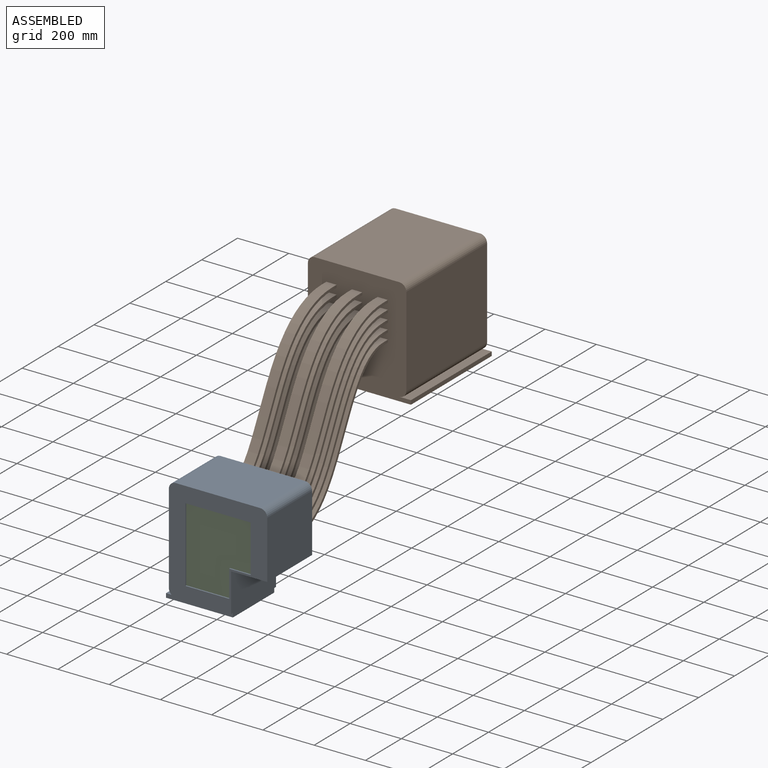
[diagram: assembled view]
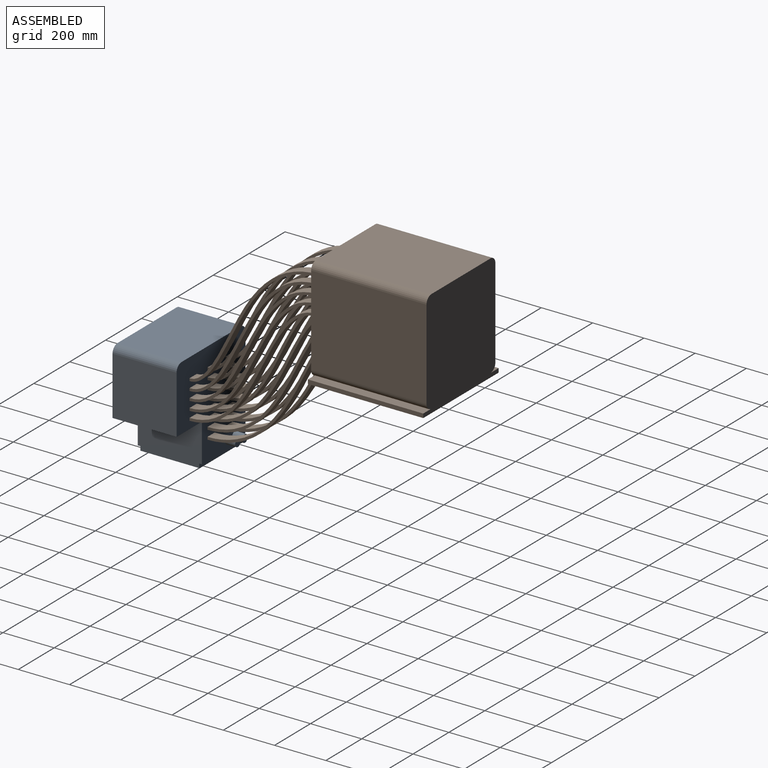
[diagram: assembled view, second angle]
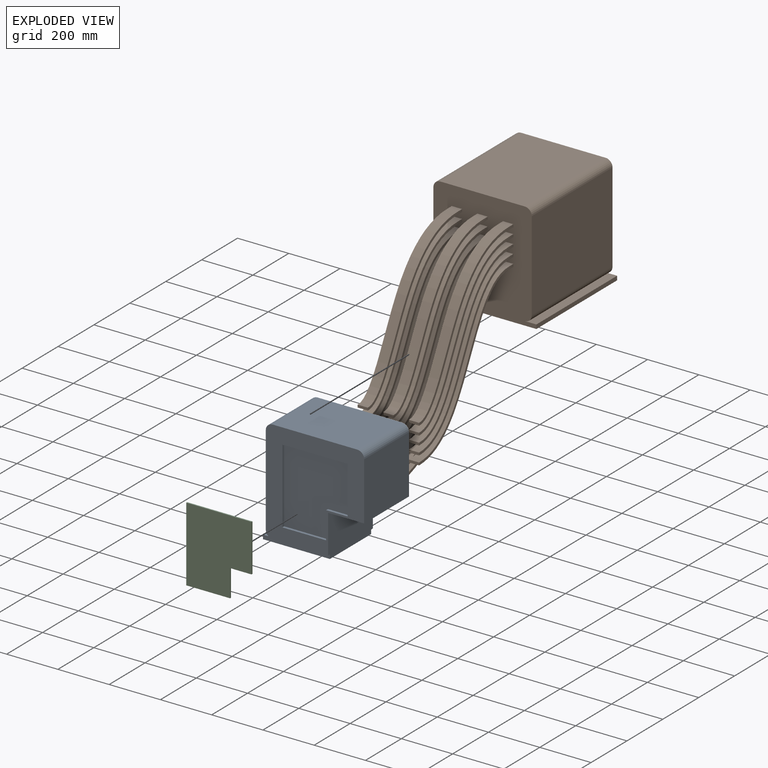
[diagram: exploded view]
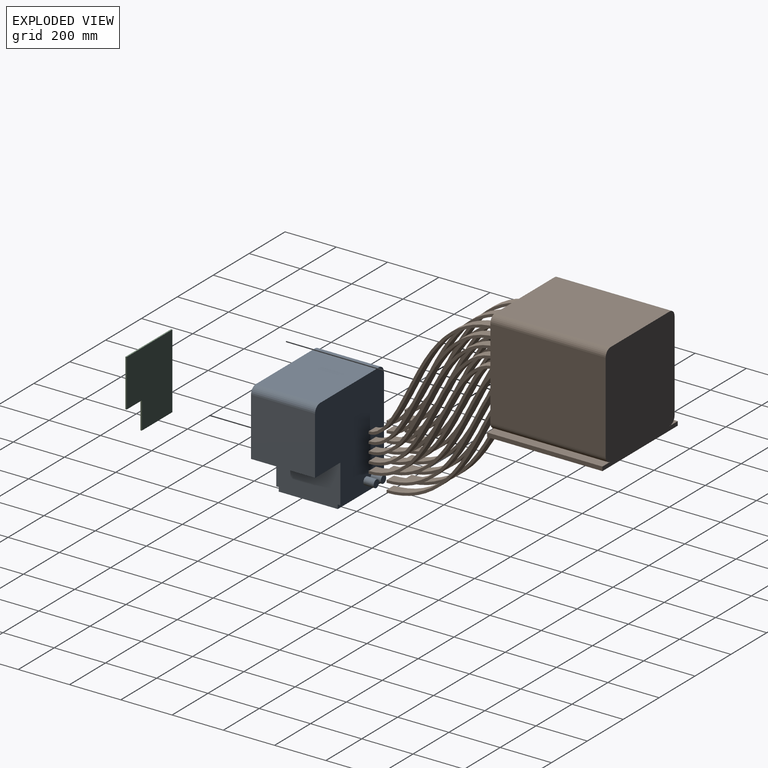
[diagram: exploded view, second angle]
ASSEMBLY  parts=3 mates=2
PART A: 28 faces, bbox 402x290x420 mm
  f0: plane 230x45mm, normal (0,0,1), area 10350mm2, adj f1,f12,f21,f23
  f1: plane 230x16mm, normal (-1,0,0), area 3680mm2, adj f0,f2,f21,f23
  f2: plane 261.09x230mm, normal (0,0,-1), area 60050.7mm2, adj f1,f5,f21,f23
  f3: plane 404x384mm, normal (0,1,0), area 132038.9mm2, adj f5,f6,f7,f8,f9,f10,f11,f12
  f4: plane 404x384mm, normal (0,-1,0), area 68111.5mm2, adj f5,f6,f7,f8,f9,f10,f11,f12
  f5: plane 250x166.55mm, normal (1,0,0), area 41317.5mm2, adj f2,f3,f4,f6,f20,f21,f22,f23
  f6: plane 250x140.91mm, normal (0,0,-1), area 35227.5mm2, adj f3,f4,f5,f7
  f7: plane 250x226.45mm, normal (1,0,0), area 56612.5mm2, adj f3,f4,f6,f8
  f8: cylinder r=27mm len=250mm, axis (0,-1,0), area 10602.9mm2, adj f3,f4,f7,f9
  f9: plane 330x250mm, normal (0,0,1), area 82500mm2, adj f3,f4,f8,f10
  f10: cylinder r=27mm len=250mm, axis (0,-1,0), area 10602.9mm2, adj f3,f4,f9,f11
  f11: plane 350x250mm, normal (-1,0,0), area 87500mm2, adj f3,f4,f10,f12
  f12: cylinder r=27mm len=250mm, axis (0,-1,0), area 10602.9mm2, adj f0,f3,f4,f11,f20,f22
  f13: plane 83.8x10mm, normal (0,0,1), area 838mm2, adj f4,f14,f18,f19
  f14: plane 184.99x10mm, normal (-1,0,0), area 1849.9mm2, adj f4,f13,f15,f19
  f15: plane 254.78x10mm, normal (0,0,-1), area 2547.8mm2, adj f4,f14,f16,f19
  f16: plane 291.49x10mm, normal (1,0,0), area 2914.9mm2, adj f4,f15,f17,f19
  f17: plane 170.98x10mm, normal (0,0,1), area 1709.8mm2, adj f4,f16,f18,f19
  f18: plane 106.5x10mm, normal (-1,0,0), area 1065mm2, adj f4,f13,f17,f19
  f19: plane 291.49x254.78mm, normal (0,-1,0), area 65341.1mm2, adj f13,f14,f15,f16,f17,f18
  f20: plane 216.09x10mm, normal (0,0,-1), area 2160.9mm2, adj f4,f5,f12,f21
  f21: plane 261.09x16mm, normal (0,-1,0), area 4177.4mm2, adj f0,f1,f2,f5,f20
  f22: plane 216.09x10mm, normal (0,0,-1), area 2160.9mm2, adj f3,f5,f12,f23
  f23: plane 261.09x16mm, normal (0,1,0), area 4177.4mm2, adj f0,f1,f2,f5,f22
  f24: cylinder r=15mm len=40mm, axis (0,-1,0), area 3769.9mm2, adj f3,f25
  f25: plane 30x30mm, normal (0,1,0), area 706.9mm2, adj f24
  f26: cylinder r=15mm len=40mm, axis (0,-1,0), area 3769.9mm2, adj f3,f27
  f27: plane 30x30mm, normal (0,1,0), area 706.9mm2, adj f26
PART B: 161 faces, bbox 423x978x832.5 mm
  f0: plane 420x420mm, normal (0,-1,0), area 152830.2mm2, adj f1,f2,f3,f4,f5,f6,f7,f8
  f1: cylinder r=27mm len=450mm, axis (0,1,0), area 19085.2mm2, adj f0,f2,f12,f13
  f2: plane 450x350mm, normal (1,0,0), area 157500mm2, adj f0,f1,f3,f13
  f3: cylinder r=27mm len=450mm, axis (0,1,0), area 19085.2mm2, adj f0,f2,f4,f13
  f4: plane 450x330mm, normal (0,0,1), area 148500mm2, adj f0,f3,f5,f13
  f5: cylinder r=27mm len=450mm, axis (0,1,0), area 19085.2mm2, adj f0,f4,f6,f13
  f6: plane 450x350mm, normal (-1,0,0), area 157500mm2, adj f0,f5,f7,f13
  f7: cylinder r=27mm len=450mm, axis (0,1,0), area 19085.2mm2, adj f0,f6,f8,f13
  f8: plane 450x45mm, normal (0,0,1), area 20250mm2, adj f0,f7,f9,f13
  f9: plane 450x16mm, normal (-1,0,0), area 7200mm2, adj f0,f8,f10,f13
  f10: plane 450x420mm, normal (0,0,-1), area 189000mm2, adj f0,f9,f11,f13
  f11: plane 450x16mm, normal (1,0,0), area 7200mm2, adj f0,f10,f12,f13
  f12: plane 450x45mm, normal (0,0,1), area 20250mm2, adj f0,f1,f11,f13
  f13: plane 420x420mm, normal (0,1,0), area 161230.2mm2, adj f1,f2,f3,f4,f5,f6,f7,f8
  f14: plane 40x25mm, normal (0,0,-1), area 1000mm2, adj f0,f15,f17,f100
  f15: plane 527.37x512.37mm, normal (1,0,0), area 7772.6mm2, adj f0,f14,f16,f98,f99,f100
  f16: plane 40x25mm, normal (0,0,1), area 1000mm2, adj f0,f15,f17,f99
  f17: plane 527.37x512.37mm, normal (-1,0,0), area 7772.4mm2, adj f0,f14,f16,f98,f99,f100
  f18: plane 525x510mm, normal (-1,0,0), area 7726.4mm2, adj f0,f19,f21,f101,f102,f103
  f19: plane 40x25mm, normal (0,0,-1), area 1000mm2, adj f0,f18,f20,f102
  f20: plane 525x510mm, normal (1,0,0), area 7726.4mm2, adj f0,f19,f21,f101,f102,f103
  f21: plane 40x25mm, normal (0,0,1), area 1000mm2, adj f0,f18,f20,f103
  f22: plane 527.96x512.96mm, normal (-1,0,0), area 7987.9mm2, adj f0,f23,f25,f104,f105,f106
  f23: plane 40x25mm, normal (0,0,-1), area 1000mm2, adj f0,f22,f24,f105
  f24: plane 527.95x512.95mm, normal (1,0,0), area 7987.5mm2, adj f0,f23,f25,f104,f105,f106
  f25: plane 40x25mm, normal (0,0,1), area 1000mm2, adj f0,f22,f24,f106
  f26: plane 525x510mm, normal (-1,0,0), area 7725.6mm2, adj f0,f27,f29,f107,f108,f109
  f27: plane 40x25mm, normal (0,0,-1), area 1000mm2, adj f0,f26,f28,f108
  f28: plane 525x510mm, normal (1,0,0), area 7725.6mm2, adj f0,f27,f29,f107,f108,f109
  f29: plane 40x25mm, normal (0,0,1), area 1000mm2, adj f0,f26,f28,f109
  f30: plane 527.96x512.96mm, normal (-1,0,0), area 7573.2mm2, adj f0,f31,f33,f110,f111,f112
  f31: plane 40x25mm, normal (0,0,-1), area 1000mm2, adj f0,f30,f32,f111
  f32: plane 527.95x512.95mm, normal (1,0,0), area 7564.4mm2, adj f0,f31,f33,f110,f111,f112
  f33: plane 40x25mm, normal (0,0,1), area 1000mm2, adj f0,f30,f32,f112
  f34: plane 525x510mm, normal (-1,0,0), area 7726.4mm2, adj f0,f35,f37,f113,f114,f115
  f35: plane 40x25mm, normal (0,0,-1), area 1000mm2, adj f0,f34,f36,f114
  f36: plane 525x510mm, normal (1,0,0), area 7726.4mm2, adj f0,f35,f37,f113,f114,f115
  f37: plane 40x25mm, normal (0,0,1), area 1000mm2, adj f0,f34,f36,f115
  f38: plane 527.37x512.37mm, normal (-1,0,0), area 7580.8mm2, adj f0,f39,f41,f116,f117,f118
  f39: plane 40x25mm, normal (0,0,-1), area 1000mm2, adj f0,f38,f40,f117
  f40: plane 527.37x512.37mm, normal (1,0,0), area 7581mm2, adj f0,f39,f41,f116,f117,f118
  f41: plane 40x25mm, normal (0,0,1), area 1000mm2, adj f0,f38,f40,f118
  f42: plane 525x510mm, normal (-1,0,0), area 7726.5mm2, adj f0,f43,f45,f119,f120,f121
  f43: plane 40x25mm, normal (0,0,-1), area 1000mm2, adj f0,f42,f44,f120
  f44: plane 525x510mm, normal (1,0,0), area 7726.5mm2, adj f0,f43,f45,f119,f120,f121
  f45: plane 40x25mm, normal (0,0,1), area 1000mm2, adj f0,f42,f44,f121
  f46: plane 527.37x512.37mm, normal (-1,0,0), area 7772.4mm2, adj f0,f47,f49,f122,f123,f124
  f47: plane 40x25mm, normal (0,0,-1), area 1000mm2, adj f0,f46,f48,f123
  f48: plane 527.37x512.37mm, normal (1,0,0), area 7772.6mm2, adj f0,f47,f49,f122,f123,f124
  f49: plane 40x25mm, normal (0,0,1), area 1000mm2, adj f0,f46,f48,f124
  f50: plane 525x510mm, normal (-1,0,0), area 7726.4mm2, adj f0,f51,f53,f125,f126,f127
  f51: plane 40x25mm, normal (0,0,-1), area 1000mm2, adj f0,f50,f52,f126
  f52: plane 525x510mm, normal (1,0,0), area 7726.4mm2, adj f0,f51,f53,f125,f126,f127
  f53: plane 40x25mm, normal (0,0,1), area 1000mm2, adj f0,f50,f52,f127
  f54: plane 527.96x512.96mm, normal (-1,0,0), area 7987.9mm2, adj f0,f55,f57,f128,f129,f130
  f55: plane 40x25mm, normal (0,0,-1), area 1000mm2, adj f0,f54,f56,f129
  f56: plane 527.95x512.95mm, normal (1,0,0), area 7987.5mm2, adj f0,f55,f57,f128,f129,f130
  f57: plane 40x25mm, normal (0,0,1), area 1000mm2, adj f0,f54,f56,f130
  f58: plane 525x510mm, normal (-1,0,0), area 7725.6mm2, adj f0,f59,f61,f131,f132,f133
  f59: plane 40x25mm, normal (0,0,-1), area 1000mm2, adj f0,f58,f60,f132
  f60: plane 525x510mm, normal (1,0,0), area 7725.6mm2, adj f0,f59,f61,f131,f132,f133
  f61: plane 40x25mm, normal (0,0,1), area 1000mm2, adj f0,f58,f60,f133
  f62: plane 527.96x512.96mm, normal (-1,0,0), area 7573.2mm2, adj f0,f63,f65,f134,f135,f136
  f63: plane 40x25mm, normal (0,0,-1), area 1000mm2, adj f0,f62,f64,f135
  f64: plane 527.95x512.95mm, normal (1,0,0), area 7564.4mm2, adj f0,f63,f65,f134,f135,f136
  f65: plane 40x25mm, normal (0,0,1), area 1000mm2, adj f0,f62,f64,f136
  f66: plane 525x510mm, normal (-1,0,0), area 7726.4mm2, adj f0,f67,f69,f137,f138,f139
  f67: plane 40x25mm, normal (0,0,-1), area 1000mm2, adj f0,f66,f68,f138
  f68: plane 525x510mm, normal (1,0,0), area 7726.4mm2, adj f0,f67,f69,f137,f138,f139
  f69: plane 40x25mm, normal (0,0,1), area 1000mm2, adj f0,f66,f68,f139
  f70: plane 527.37x512.37mm, normal (-1,0,0), area 7580.8mm2, adj f0,f71,f73,f140,f141,f142
  f71: plane 40x25mm, normal (0,0,-1), area 1000mm2, adj f0,f70,f72,f141
  f72: plane 527.37x512.37mm, normal (1,0,0), area 7581mm2, adj f0,f71,f73,f140,f141,f142
  f73: plane 40x25mm, normal (0,0,1), area 1000mm2, adj f0,f70,f72,f142
  f74: plane 525x510mm, normal (-1,0,0), area 7726.5mm2, adj f0,f75,f77,f143,f144,f145
  f75: plane 40x25mm, normal (0,0,-1), area 1000mm2, adj f0,f74,f76,f144
  f76: plane 525x510mm, normal (1,0,0), area 7726.5mm2, adj f0,f75,f77,f143,f144,f145
  f77: plane 40x25mm, normal (0,0,1), area 1000mm2, adj f0,f74,f76,f145
  f78: plane 527.37x512.37mm, normal (-1,0,0), area 7772.4mm2, adj f0,f79,f81,f146,f147,f148
  f79: plane 40x25mm, normal (0,0,-1), area 1000mm2, adj f0,f78,f80,f147
  f80: plane 527.37x512.37mm, normal (1,0,0), area 7772.6mm2, adj f0,f79,f81,f146,f147,f148
  f81: plane 40x25mm, normal (0,0,1), area 1000mm2, adj f0,f78,f80,f148
  f82: plane 525x510mm, normal (-1,0,0), area 7726.4mm2, adj f0,f83,f85,f149,f150,f151
  f83: plane 40x25mm, normal (0,0,-1), area 1000mm2, adj f0,f82,f84,f150
  f84: plane 525x510mm, normal (1,0,0), area 7726.4mm2, adj f0,f83,f85,f149,f150,f151
  f85: plane 40x25mm, normal (0,0,1), area 1000mm2, adj f0,f82,f84,f151
  f86: plane 527.96x512.96mm, normal (-1,0,0), area 7987.9mm2, adj f0,f87,f89,f152,f153,f154
  f87: plane 40x25mm, normal (0,0,-1), area 1000mm2, adj f0,f86,f88,f153
  f88: plane 527.95x512.95mm, normal (1,0,0), area 7987.5mm2, adj f0,f87,f89,f152,f153,f154
  f89: plane 40x25mm, normal (0,0,1), area 1000mm2, adj f0,f86,f88,f154
  f90: plane 525x510mm, normal (-1,0,0), area 7725.6mm2, adj f0,f91,f93,f155,f156,f157
  f91: plane 40x25mm, normal (0,0,-1), area 1000mm2, adj f0,f90,f92,f156
  f92: plane 525x510mm, normal (1,0,0), area 7725.6mm2, adj f0,f91,f93,f155,f156,f157
  f93: plane 40x25mm, normal (0,0,1), area 1000mm2, adj f0,f90,f92,f157
  f94: plane 527.96x512.96mm, normal (-1,0,0), area 7573.2mm2, adj f0,f95,f97,f158,f159,f160
  f95: plane 40x25mm, normal (0,0,-1), area 1000mm2, adj f0,f94,f96,f159
  f96: plane 527.95x512.95mm, normal (1,0,0), area 7564.4mm2, adj f0,f95,f97,f158,f159,f160
  f97: plane 40x25mm, normal (0,0,1), area 1000mm2, adj f0,f94,f96,f160
  f98: plane 40x10mm, normal (0,-1,0), area 400mm2, adj f15,f17,f99,f100
  f99: bspline ~500x500mm, area 29905.6mm2, adj f15,f16,f17,f98
  f100: bspline ~500x500mm, area 29905.6mm2, adj f14,f15,f17,f98
  f101: plane 40x10mm, normal (0,-1,0), area 400mm2, adj f18,f20,f102,f103
  f102: bspline ~500x500mm, area 29905.6mm2, adj f18,f19,f20,f101
  f103: bspline ~500x500mm, area 29905.6mm2, adj f18,f20,f21,f101
  f104: plane 40x10mm, normal (0,-1,0), area 400mm2, adj f22,f24,f105,f106
  f105: bspline ~500x500mm, area 29905.6mm2, adj f22,f23,f24,f104
  f106: bspline ~500x500mm, area 29905.6mm2, adj f22,f24,f25,f104
  f107: plane 40x10mm, normal (0,-1,0), area 400mm2, adj f26,f28,f108,f109
  f108: bspline ~500x500mm, area 29905.6mm2, adj f26,f27,f28,f107
  f109: bspline ~500x500mm, area 29905.6mm2, adj f26,f28,f29,f107
  f110: plane 40x10mm, normal (0,-1,0), area 400mm2, adj f30,f32,f111,f112
  f111: bspline ~500x500mm, area 29905.6mm2, adj f30,f31,f32,f110
  f112: bspline ~500x500mm, area 29905.6mm2, adj f30,f32,f33,f110
  f113: plane 40x10mm, normal (0,-1,0), area 400mm2, adj f34,f36,f114,f115
  f114: bspline ~500x500mm, area 29905.6mm2, adj f34,f35,f36,f113
  f115: bspline ~500x500mm, area 29905.6mm2, adj f34,f36,f37,f113
  f116: plane 40x10mm, normal (0,-1,0), area 400mm2, adj f38,f40,f117,f118
  f117: bspline ~500x500mm, area 29905.6mm2, adj f38,f39,f40,f116
  f118: bspline ~500x500mm, area 29905.6mm2, adj f38,f40,f41,f116
  f119: plane 40x10mm, normal (0,-1,0), area 400mm2, adj f42,f44,f120,f121
  f120: bspline ~500x500mm, area 29905.6mm2, adj f42,f43,f44,f119
  f121: bspline ~500x500mm, area 29905.6mm2, adj f42,f44,f45,f119
  f122: plane 40x10mm, normal (0,-1,0), area 400mm2, adj f46,f48,f123,f124
  f123: bspline ~500x500mm, area 29905.6mm2, adj f46,f47,f48,f122
  f124: bspline ~500x500mm, area 29905.6mm2, adj f46,f48,f49,f122
  f125: plane 40x10mm, normal (0,-1,0), area 400mm2, adj f50,f52,f126,f127
  f126: bspline ~500x500mm, area 29905.6mm2, adj f50,f51,f52,f125
  f127: bspline ~500x500mm, area 29905.6mm2, adj f50,f52,f53,f125
  f128: plane 40x10mm, normal (0,-1,0), area 400mm2, adj f54,f56,f129,f130
  f129: bspline ~500x500mm, area 29905.6mm2, adj f54,f55,f56,f128
  f130: bspline ~500x500mm, area 29905.6mm2, adj f54,f56,f57,f128
  f131: plane 40x10mm, normal (0,-1,0), area 400mm2, adj f58,f60,f132,f133
  f132: bspline ~500x500mm, area 29905.6mm2, adj f58,f59,f60,f131
  f133: bspline ~500x500mm, area 29905.6mm2, adj f58,f60,f61,f131
  f134: plane 40x10mm, normal (0,-1,0), area 400mm2, adj f62,f64,f135,f136
  f135: bspline ~500x500mm, area 29905.6mm2, adj f62,f63,f64,f134
  f136: bspline ~500x500mm, area 29905.6mm2, adj f62,f64,f65,f134
  f137: plane 40x10mm, normal (0,-1,0), area 400mm2, adj f66,f68,f138,f139
  f138: bspline ~500x500mm, area 29905.6mm2, adj f66,f67,f68,f137
  f139: bspline ~500x500mm, area 29905.6mm2, adj f66,f68,f69,f137
  f140: plane 40x10mm, normal (0,-1,0), area 400mm2, adj f70,f72,f141,f142
  f141: bspline ~500x500mm, area 29905.6mm2, adj f70,f71,f72,f140
  f142: bspline ~500x500mm, area 29905.6mm2, adj f70,f72,f73,f140
  f143: plane 40x10mm, normal (0,-1,0), area 400mm2, adj f74,f76,f144,f145
  f144: bspline ~500x500mm, area 29905.6mm2, adj f74,f75,f76,f143
  f145: bspline ~500x500mm, area 29905.6mm2, adj f74,f76,f77,f143
  f146: plane 40x10mm, normal (0,-1,0), area 400mm2, adj f78,f80,f147,f148
  f147: bspline ~500x500mm, area 29905.6mm2, adj f78,f79,f80,f146
  f148: bspline ~500x500mm, area 29905.6mm2, adj f78,f80,f81,f146
  f149: plane 40x10mm, normal (0,-1,0), area 400mm2, adj f82,f84,f150,f151
  f150: bspline ~500x500mm, area 29905.6mm2, adj f82,f83,f84,f149
  f151: bspline ~500x500mm, area 29905.6mm2, adj f82,f84,f85,f149
  f152: plane 40x10mm, normal (0,-1,0), area 400mm2, adj f86,f88,f153,f154
  f153: bspline ~500x500mm, area 29905.6mm2, adj f86,f87,f88,f152
  f154: bspline ~500x500mm, area 29905.6mm2, adj f86,f88,f89,f152
  f155: plane 40x10mm, normal (0,-1,0), area 400mm2, adj f90,f92,f156,f157
  f156: bspline ~500x500mm, area 29905.6mm2, adj f90,f91,f92,f155
  f157: bspline ~500x500mm, area 29905.6mm2, adj f90,f92,f93,f155
  f158: plane 40x10mm, normal (0,-1,0), area 400mm2, adj f94,f96,f159,f160
  f159: bspline ~500x500mm, area 29905.6mm2, adj f94,f95,f96,f158
  f160: bspline ~500x500mm, area 29905.6mm2, adj f94,f96,f97,f158
PART C: 8 faces, bbox 254.8x5x291.5 mm
  f0: plane 83.8x5mm, normal (0,0,-1), area 419mm2, adj f1,f5,f6,f7
  f1: plane 184.99x5mm, normal (1,0,0), area 924.9mm2, adj f0,f2,f6,f7
  f2: plane 254.78x5mm, normal (0,0,1), area 1273.9mm2, adj f1,f3,f6,f7
  f3: plane 291.49x5mm, normal (-1,0,0), area 1457.4mm2, adj f2,f4,f6,f7
  f4: plane 170.98x5mm, normal (0,0,-1), area 854.9mm2, adj f3,f5,f6,f7
  f5: plane 106.5x5mm, normal (1,0,0), area 532.5mm2, adj f0,f4,f6,f7
  f6: plane 291.49x254.78mm, normal (0,-1,0), area 65341.1mm2, adj f0,f1,f2,f3,f4,f5
  f7: plane 291.49x254.78mm, normal (0,1,0), area 65341.1mm2, adj f0,f1,f2,f3,f4,f5
PLACE A t=(11.68,-10,-7.93)mm
PLACE B t=(11.68,1215,492.57)mm
PLACE C t=(11.68,0,-7.93)mm
MATE fastened C.f7 <-> A.f19  axis (0,1,0) through (0,0,0)mm
MATE fastened B.f98 <-> A.f3  axis (0,-1,0) through (-88.32,240,115.07)mm
